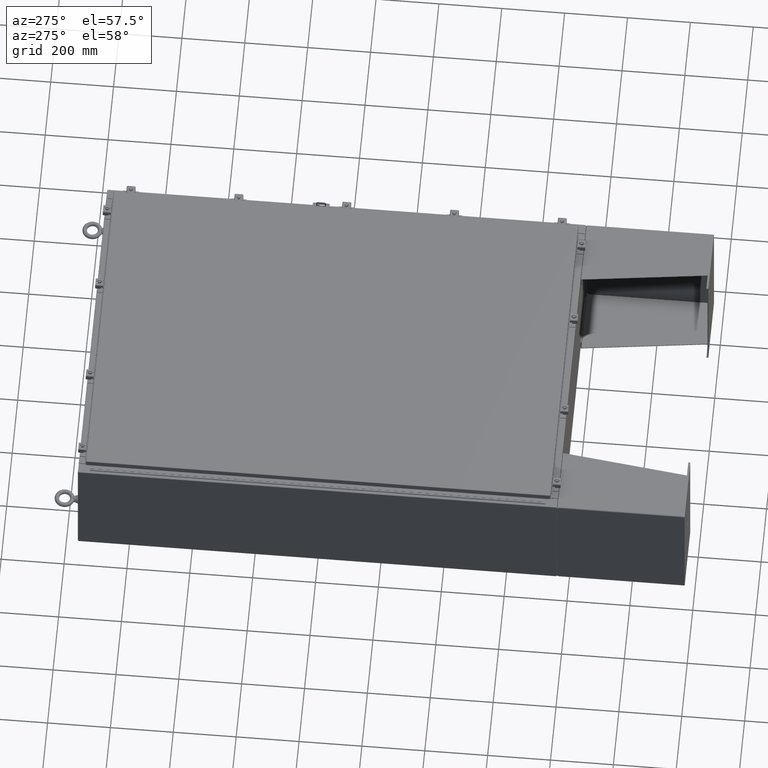
[diagram: clean part render]
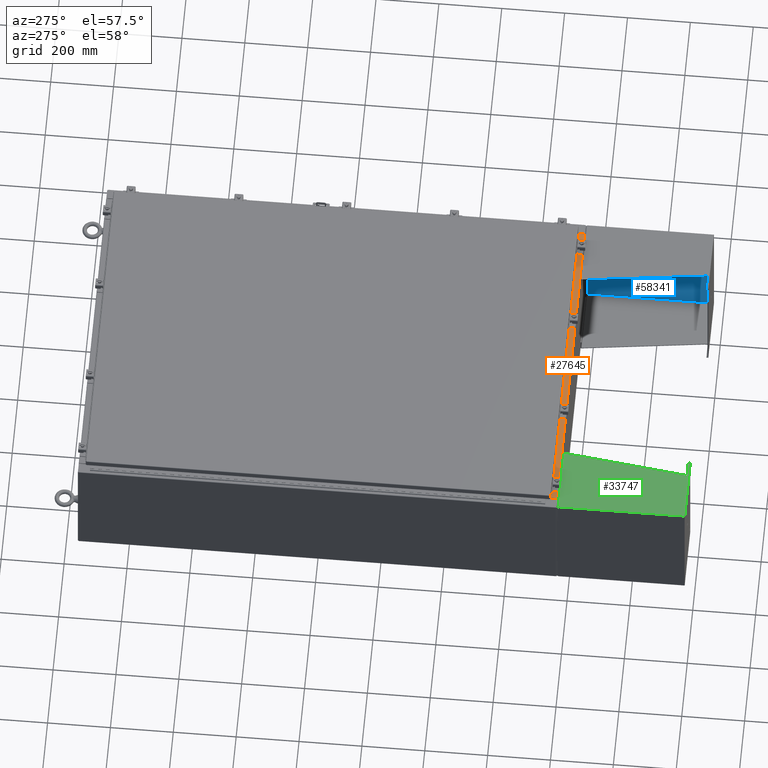
[diagram: same view with three faces highlighted in distinct colors, each labeled with its STEP entity id]
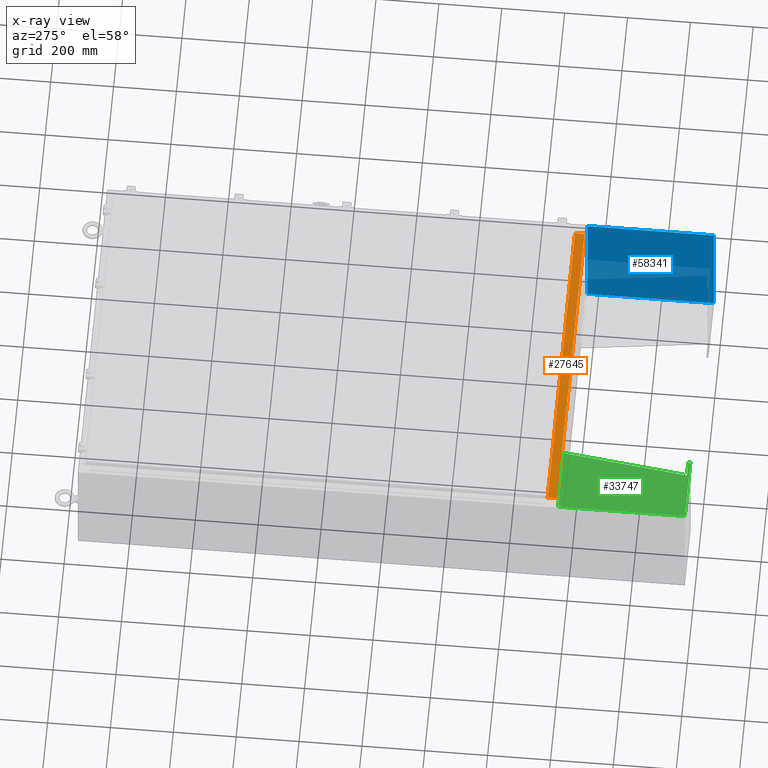
[diagram: x-ray of the same camera — body ghosted, the three highlighted faces saturated]
A machine part, auxiliary view with three faces highlighted in distinct colors.
The next image is the same camera in x-ray (body ghosted, the three faces saturated) — at least one of them is partly hidden behind the body in this view.
Their STEP definitions:

[orange] entity #27645 — the highlighted planar face has unit normal (-0, -0, 1).
#113 = VERTEX_POINT ( 'NONE', #15785 ) ;
#2075 = DIRECTION ( 'NONE',  ( -1.000000000000000000, -2.782319265133790500E-017, 9.922811099463672500E-032 ) ) ;
#3730 = PLANE ( 'NONE',  #21993 ) ;
#4820 = DIRECTION ( 'NONE',  ( -0.0000000000000000000, -1.000000000000000000, 2.674785894579892700E-015 ) ) ;
#8064 = CARTESIAN_POINT ( 'NONE',  ( -19.63720000000000400, -1.287300000000000600, 8.000000000000007100 ) ) ;
#9051 = DIRECTION ( 'NONE',  ( 0.0000000000000000000, 3.566381192773190000E-015, 1.000000000000000000 ) ) ;
#11524 = LINE ( 'NONE', #56719, #67148 ) ;
#15785 = CARTESIAN_POINT ( 'NONE',  ( 19.63720000000000400, -0.08770000000000047200, 8.000000000000001800 ) ) ;
#16398 = LINE ( 'NONE', #38961, #27033 ) ;
#19112 = ORIENTED_EDGE ( 'NONE', *, *, #29950, .T. ) ;
#20135 = FACE_OUTER_BOUND ( 'NONE', #36885, .T. ) ;
#20917 = VERTEX_POINT ( 'NONE', #52889 ) ;
#21603 = ORIENTED_EDGE ( 'NONE', *, *, #32359, .F. ) ;
#21993 = AXIS2_PLACEMENT_3D ( 'NONE', #61228, #9051, #45800 ) ;
#23446 = LINE ( 'NONE', #63857, #35740 ) ;
#25481 = DIRECTION ( 'NONE',  ( -1.000000000000000000, 0.0000000000000000000, 0.0000000000000000000 ) ) ;
#25888 = LINE ( 'NONE', #26001, #67500 ) ;
#26001 = CARTESIAN_POINT ( 'NONE',  ( 19.63720000000000400, -1.300299999999999800, 8.000000000000005300 ) ) ;
#27033 = VECTOR ( 'NONE', #2075, 39.37007874015748100 ) ;
#27645 = ADVANCED_FACE ( 'NONE', ( #20135 ), #3730, .T. ) ;
#28002 = ORIENTED_EDGE ( 'NONE', *, *, #29134, .F. ) ;
#29134 = EDGE_CURVE ( 'NONE', #20917, #44914, #11524, .T. ) ;
#29538 = ORIENTED_EDGE ( 'NONE', *, *, #63854, .F. ) ;
#29635 = VERTEX_POINT ( 'NONE', #36168 ) ;
#29950 = EDGE_CURVE ( 'NONE', #113, #29635, #16398, .T. ) ;
#32359 = EDGE_CURVE ( 'NONE', #113, #20917, #25888, .T. ) ;
#32579 = DIRECTION ( 'NONE',  ( -0.0000000000000000000, 1.000000000000000000, -3.566381192773190000E-015 ) ) ;
#35740 = VECTOR ( 'NONE', #32579, 39.37007874015748100 ) ;
#36168 = CARTESIAN_POINT ( 'NONE',  ( -19.63720000000000400, -0.08770000000000081900, 8.000000000000001800 ) ) ;
#36885 = EDGE_LOOP ( 'NONE', ( #29538, #28002, #21603, #19112 ) ) ;
#38961 = CARTESIAN_POINT ( 'NONE',  ( 4.390546750099863900E-018, -0.08770000000000081900, 8.000000000000001800 ) ) ;
#44914 = VERTEX_POINT ( 'NONE', #8064 ) ;
#45800 = DIRECTION ( 'NONE',  ( 0.0000000000000000000, -1.000000000000000000, 3.566381192773190000E-015 ) ) ;
#52889 = CARTESIAN_POINT ( 'NONE',  ( 19.63720000000000400, -1.287300000000001200, 8.000000000000005300 ) ) ;
#56719 = CARTESIAN_POINT ( 'NONE',  ( 19.63720000000000400, -1.287300000000001200, 8.000000000000007100 ) ) ;
#61228 = CARTESIAN_POINT ( 'NONE',  ( 1.950452754576713000E-018, 2.852545452309695200E-014, 8.000000000000001800 ) ) ;
#63854 = EDGE_CURVE ( 'NONE', #44914, #29635, #23446, .T. ) ;
#63857 = CARTESIAN_POINT ( 'NONE',  ( -19.63720000000000400, -0.07469999999999973900, 8.000000000000001800 ) ) ;
#67148 = VECTOR ( 'NONE', #25481, 39.37007874015748100 ) ;
#67500 = VECTOR ( 'NONE', #4820, 39.37007874015748100 ) ;

[blue] entity #58341 — the highlighted planar face has unit normal (1, 0, -0).
#827 = ORIENTED_EDGE ( 'NONE', *, *, #52636, .F. ) ;
#1517 = CARTESIAN_POINT ( 'NONE',  ( 7.857000000000001100, 7.857000000000001100, 1.365923996832131600E-016 ) ) ;
#5808 = VERTEX_POINT ( 'NONE', #1517 ) ;
#7667 = DIRECTION ( 'NONE',  ( 1.000000000000000000, 0.0000000000000000000, 0.0000000000000000000 ) ) ;
#9987 = EDGE_CURVE ( 'NONE', #5808, #37177, #41593, .T. ) ;
#10727 = VERTEX_POINT ( 'NONE', #60911 ) ;
#11591 = AXIS2_PLACEMENT_3D ( 'NONE', #22148, #58608, #27393 ) ;
#11824 = DIRECTION ( 'NONE',  ( -0.0000000000000000000, -1.000000000000000000, -0.0000000000000000000 ) ) ;
#12759 = DIRECTION ( 'NONE',  ( -0.0000000000000000000, 1.000000000000000000, -0.0000000000000000000 ) ) ;
#14118 = CARTESIAN_POINT ( 'NONE',  ( 7.857000000000001100, 8.000000000000001800, 1.365923996832131600E-016 ) ) ;
#14999 = CARTESIAN_POINT ( 'NONE',  ( -7.999999999999997300, -7.999999999999999100, 0.0000000000000000000 ) ) ;
#19364 = VECTOR ( 'NONE', #12759, 39.37007874015748100 ) ;
#22148 = CARTESIAN_POINT ( 'NONE',  ( 8.000000000000001800, 8.000000000000001800, 0.0000000000000000000 ) ) ;
#26358 = LINE ( 'NONE', #14999, #64764 ) ;
#27393 = DIRECTION ( 'NONE',  ( -1.000000000000000000, 0.0000000000000000000, -0.0000000000000000000 ) ) ;
#28375 = CARTESIAN_POINT ( 'NONE',  ( -7.856999999999997500, -7.999999999999999100, 1.365923996832131600E-016 ) ) ;
#29174 = VECTOR ( 'NONE', #11824, 39.37007874015748100 ) ;
#30948 = LINE ( 'NONE', #44490, #44955 ) ;
#37177 = VERTEX_POINT ( 'NONE', #66913 ) ;
#41593 = LINE ( 'NONE', #14118, #29174 ) ;
#44490 = CARTESIAN_POINT ( 'NONE',  ( -7.856999999999996700, 7.857000000000001100, 1.365923996832131600E-016 ) ) ;
#44886 = ORIENTED_EDGE ( 'NONE', *, *, #9987, .F. ) ;
#44955 = VECTOR ( 'NONE', #7667, 39.37007874015748100 ) ;
#46399 = DIRECTION ( 'NONE',  ( 1.000000000000000000, 0.0000000000000000000, 0.0000000000000000000 ) ) ;
#50166 = EDGE_CURVE ( 'NONE', #55661, #37177, #26358, .T. ) ;
#52636 = EDGE_CURVE ( 'NONE', #10727, #5808, #30948, .T. ) ;
#53354 = ORIENTED_EDGE ( 'NONE', *, *, #50166, .T. ) ;
#53439 = PLANE ( 'NONE',  #11591 ) ;
#55349 = EDGE_CURVE ( 'NONE', #55661, #10727, #59381, .T. ) ;
#55661 = VERTEX_POINT ( 'NONE', #57044 ) ;
#57044 = CARTESIAN_POINT ( 'NONE',  ( -7.856999999999997500, -8.000000000000000000, 1.365923996832131600E-016 ) ) ;
#58341 = ADVANCED_FACE ( 'NONE', ( #61440 ), #53439, .F. ) ;
#58608 = DIRECTION ( 'NONE',  ( 0.0000000000000000000, 0.0000000000000000000, -1.000000000000000000 ) ) ;
#59002 = ORIENTED_EDGE ( 'NONE', *, *, #55349, .F. ) ;
#59381 = LINE ( 'NONE', #28375, #19364 ) ;
#60911 = CARTESIAN_POINT ( 'NONE',  ( -7.856999999999996700, 7.857000000000001100, 1.365923996832131600E-016 ) ) ;
#61440 = FACE_OUTER_BOUND ( 'NONE', #63280, .T. ) ;
#63280 = EDGE_LOOP ( 'NONE', ( #827, #59002, #53354, #44886 ) ) ;
#64764 = VECTOR ( 'NONE', #46399, 39.37007874015748100 ) ;
#66913 = CARTESIAN_POINT ( 'NONE',  ( 7.857000000000001100, -7.999999999999997300, 1.365923996832131600E-016 ) ) ;

[green] entity #33747 — the highlighted planar face has unit normal (0, 0, -1).
#427 = VECTOR ( 'NONE', #50441, 39.37007874015748100 ) ;
#464 = LINE ( 'NONE', #67638, #26830 ) ;
#2353 = EDGE_CURVE ( 'NONE', #19558, #30539, #20776, .T. ) ;
#3156 = VERTEX_POINT ( 'NONE', #67141 ) ;
#3274 = DIRECTION ( 'NONE',  ( 3.550958521948298200E-015, 0.0000000000000000000, -1.000000000000000000 ) ) ;
#4856 = ORIENTED_EDGE ( 'NONE', *, *, #56617, .T. ) ;
#5276 = CARTESIAN_POINT ( 'NONE',  ( -8.000000000000026600, -7.750000000000000000, 8.000999999999997700 ) ) ;
#6434 = CARTESIAN_POINT ( 'NONE',  ( -8.000000000000026600, 8.000000000000001800, 8.000999999999997700 ) ) ;
#11748 = DIRECTION ( 'NONE',  ( 0.0000000000000000000, 1.000000000000000000, 0.0000000000000000000 ) ) ;
#11934 = CARTESIAN_POINT ( 'NONE',  ( -8.000000000000019500, -7.749999999999999100, 6.052216497445926700 ) ) ;
#13477 = DIRECTION ( 'NONE',  ( 3.550958521948298200E-015, 0.0000000000000000000, -1.000000000000000000 ) ) ;
#14189 = VECTOR ( 'NONE', #64618, 39.37007874015748100 ) ;
#16722 = CARTESIAN_POINT ( 'NONE',  ( -8.000000000000012400, 7.857000000000001100, 0.03900000000000469100 ) ) ;
#17272 = DIRECTION ( 'NONE',  ( -4.399772607369800400E-016, 0.9922942345449394800, 0.1239038017531047900 ) ) ;
#19099 = CARTESIAN_POINT ( 'NONE',  ( -8.000000000000026600, -7.999999999999999100, 8.000999999999997700 ) ) ;
#19558 = VERTEX_POINT ( 'NONE', #58876 ) ;
#20776 = LINE ( 'NONE', #5276, #34706 ) ;
#21248 = ORIENTED_EDGE ( 'NONE', *, *, #62823, .F. ) ;
#22696 = AXIS2_PLACEMENT_3D ( 'NONE', #29053, #44929, #13477 ) ;
#22710 = ORIENTED_EDGE ( 'NONE', *, *, #42528, .T. ) ;
#22974 = ORIENTED_EDGE ( 'NONE', *, *, #2353, .T. ) ;
#23828 = PLANE ( 'NONE',  #22696 ) ;
#25624 = VERTEX_POINT ( 'NONE', #37393 ) ;
#25914 = DIRECTION ( 'NONE',  ( 0.0000000000000000000, 1.000000000000000000, 0.0000000000000000000 ) ) ;
#26805 = LINE ( 'NONE', #19099, #427 ) ;
#26830 = VECTOR ( 'NONE', #25914, 39.37007874015748100 ) ;
#27570 = CARTESIAN_POINT ( 'NONE',  ( -8.000000000000019500, -7.750000000000000000, 6.052216497445926700 ) ) ;
#29053 = CARTESIAN_POINT ( 'NONE',  ( -8.000000000000026600, 8.000000000000001800, 8.000999999999997700 ) ) ;
#30539 = VERTEX_POINT ( 'NONE', #27570 ) ;
#30561 = EDGE_CURVE ( 'NONE', #30539, #3156, #34339, .T. ) ;
#30838 = VERTEX_POINT ( 'NONE', #50622 ) ;
#31882 = EDGE_LOOP ( 'NONE', ( #22974, #41780, #22710, #21248, #55588, #4856 ) ) ;
#33747 = ADVANCED_FACE ( 'NONE', ( #33929 ), #23828, .F. ) ;
#33929 = FACE_OUTER_BOUND ( 'NONE', #31882, .T. ) ;
#34339 = LINE ( 'NONE', #11934, #60436 ) ;
#34706 = VECTOR ( 'NONE', #3274, 39.37007874015748100 ) ;
#36721 = EDGE_CURVE ( 'NONE', #25624, #30838, #26805, .T. ) ;
#37393 = CARTESIAN_POINT ( 'NONE',  ( -7.999999999999999100, -7.999999999999999100, 0.03899999999999813300 ) ) ;
#41780 = ORIENTED_EDGE ( 'NONE', *, *, #30561, .T. ) ;
#42528 = EDGE_CURVE ( 'NONE', #3156, #43676, #55860, .T. ) ;
#43676 = VERTEX_POINT ( 'NONE', #16722 ) ;
#44929 = DIRECTION ( 'NONE',  ( 1.000000000000000000, 0.0000000000000000000, 3.550958521948298200E-015 ) ) ;
#50441 = DIRECTION ( 'NONE',  ( -3.550958521948298200E-015, 0.0000000000000000000, 1.000000000000000000 ) ) ;
#50622 = CARTESIAN_POINT ( 'NONE',  ( -8.000000000000026600, -7.999999999999999100, 8.000999999999997700 ) ) ;
#54106 = CARTESIAN_POINT ( 'NONE',  ( -8.000000000000012400, 7.857000000000001100, 8.000999999999997700 ) ) ;
#55588 = ORIENTED_EDGE ( 'NONE', *, *, #36721, .T. ) ;
#55860 = LINE ( 'NONE', #54106, #14189 ) ;
#56617 = EDGE_CURVE ( 'NONE', #30838, #19558, #67358, .T. ) ;
#58876 = CARTESIAN_POINT ( 'NONE',  ( -8.000000000000026600, -7.750000000000000000, 8.001000000000006600 ) ) ;
#60436 = VECTOR ( 'NONE', #17272, 39.37007874015748100 ) ;
#62823 = EDGE_CURVE ( 'NONE', #25624, #43676, #464, .T. ) ;
#64116 = VECTOR ( 'NONE', #11748, 39.37007874015748100 ) ;
#64618 = DIRECTION ( 'NONE',  ( 0.0000000000000000000, 0.0000000000000000000, -1.000000000000000000 ) ) ;
#67141 = CARTESIAN_POINT ( 'NONE',  ( -8.000000000000026600, 7.857000000000001100, 8.000999999999997700 ) ) ;
#67358 = LINE ( 'NONE', #6434, #64116 ) ;
#67638 = CARTESIAN_POINT ( 'NONE',  ( -7.999999999999999100, 8.000000000000001800, 0.03899999999999923000 ) ) ;